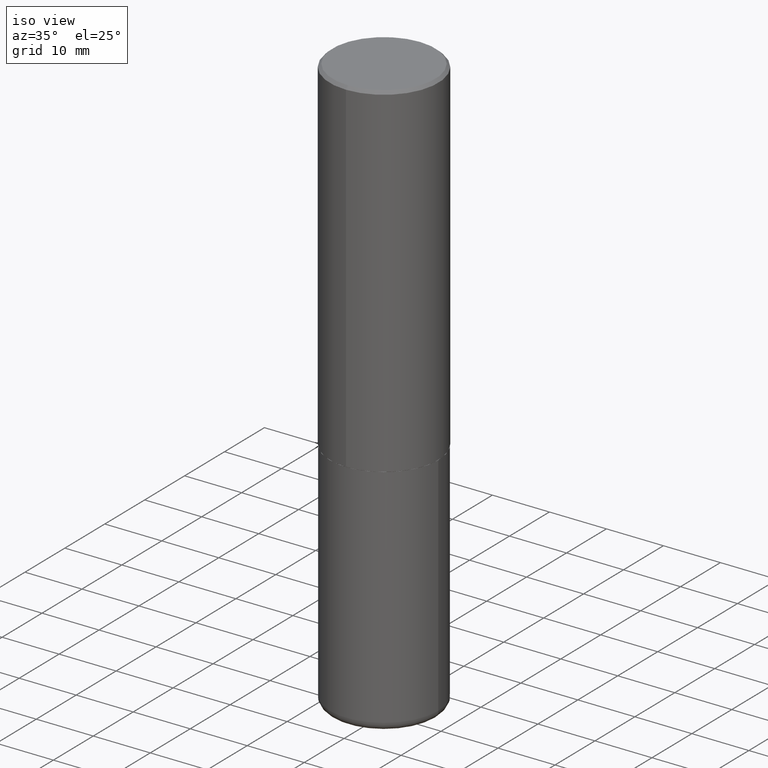
[diagram: clean part render]
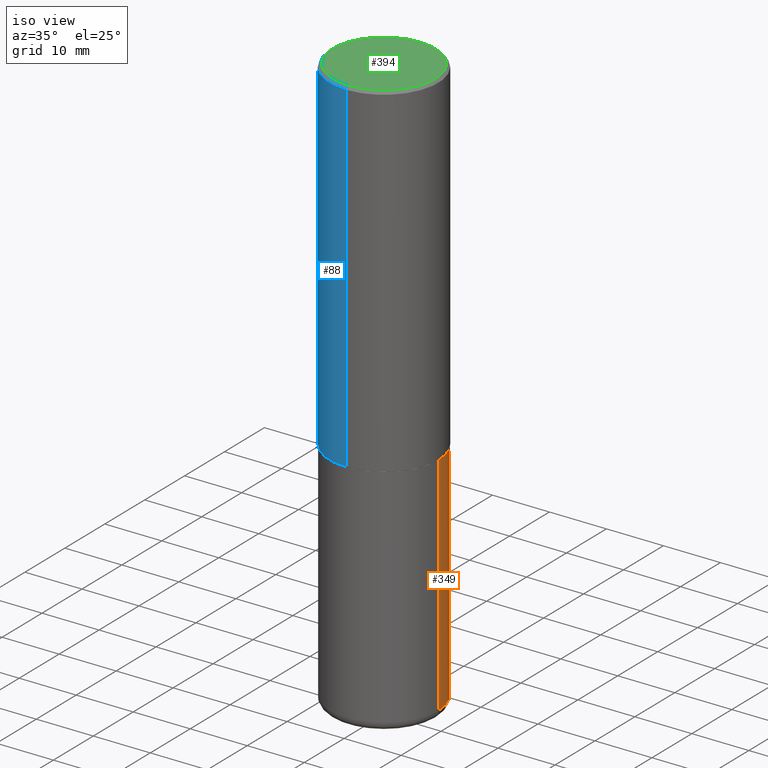
[diagram: same view with three faces highlighted in distinct colors, each labeled with its STEP entity id]
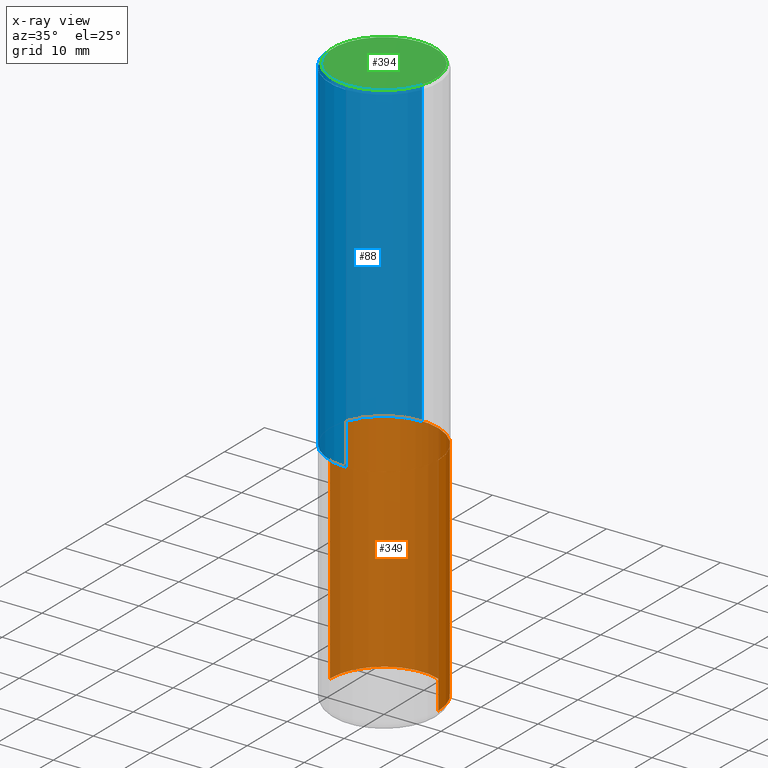
[diagram: x-ray of the same camera — body ghosted, the three highlighted faces saturated]
A machine part, iso view with three faces highlighted in distinct colors.
The next image is the same camera in x-ray (body ghosted, the three faces saturated) — at least one of them is partly hidden behind the body in this view.
Their STEP definitions:

[orange] entity #349 — the highlighted cylindrical surface (partial cylindrical patch) has radius 9.525 mm, axis along (-0, 0, 1).
#3 = DIRECTION ( 'NONE',  ( -2.445468806185136877E-29, 3.491481338843145188E-15, 1.000000000000000000 ) ) ;
#28 = DIRECTION ( 'NONE',  ( -2.445468806185136877E-29, 3.491481338843145188E-15, 1.000000000000000000 ) ) ;
#29 = DIRECTION ( 'NONE',  ( 1.000000000000000000, -6.982962677686266711E-15, 0.000000000000000000 ) ) ;
#47 = CYLINDRICAL_SURFACE ( 'NONE', #147, 0.3750000000000000555 ) ;
#66 = CARTESIAN_POINT ( 'NONE',  ( 0.3750000000000000555, -2.618611004132350016E-15, 1.828566290923476203E-29 ) ) ;
#78 = ORIENTED_EDGE ( 'NONE', *, *, #96, .T. ) ;
#85 = ORIENTED_EDGE ( 'NONE', *, *, #224, .T. ) ;
#89 = CARTESIAN_POINT ( 'NONE',  ( 0.000000000000000000, 0.000000000000000000, 0.000000000000000000 ) ) ;
#91 = AXIS2_PLACEMENT_3D ( 'NONE', #182, #114, #29 ) ;
#96 = EDGE_CURVE ( 'NONE', #231, #318, #212, .T. ) ;
#113 = CARTESIAN_POINT ( 'NONE',  ( -0.3750000000000000555, -8.359817068296857158E-15, -2.375000000000000000 ) ) ;
#114 = DIRECTION ( 'NONE',  ( -2.445468806185136597E-29, 3.491481338843145583E-15, 1.000000000000000000 ) ) ;
#123 = FACE_OUTER_BOUND ( 'NONE', #378, .T. ) ;
#147 = AXIS2_PLACEMENT_3D ( 'NONE', #89, #247, #171 ) ;
#164 = DIRECTION ( 'NONE',  ( 1.000000000000000000, -6.982962677686266711E-15, 0.000000000000000000 ) ) ;
#171 = DIRECTION ( 'NONE',  ( 1.000000000000000000, -6.982962677686265922E-15, 4.876176775795935793E-29 ) ) ;
#182 = CARTESIAN_POINT ( 'NONE',  ( 5.807988414689699417E-29, -8.292268179752470118E-15, -2.375000000000000000 ) ) ;
#190 = CARTESIAN_POINT ( 'NONE',  ( 9.635147096369438236E-29, -1.375643647504199401E-14, -3.939999999999999947 ) ) ;
#193 = EDGE_CURVE ( 'NONE', #231, #385, #353, .T. ) ;
#212 = CIRCLE ( 'NONE', #264, 0.3750000000000000555 ) ;
#224 = EDGE_CURVE ( 'NONE', #318, #270, #316, .T. ) ;
#227 = VECTOR ( 'NONE', #28, 39.37007874015748143 ) ;
#231 = VERTEX_POINT ( 'NONE', #303 ) ;
#247 = DIRECTION ( 'NONE',  ( -2.445468806185136597E-29, 3.491481338843145583E-15, 1.000000000000000000 ) ) ;
#248 = ORIENTED_EDGE ( 'NONE', *, *, #193, .F. ) ;
#264 = AXIS2_PLACEMENT_3D ( 'NONE', #190, #288, #164 ) ;
#270 = VERTEX_POINT ( 'NONE', #113 ) ;
#288 = DIRECTION ( 'NONE',  ( -2.445468806185136597E-29, 3.491481338843145583E-15, 1.000000000000000000 ) ) ;
#294 = EDGE_CURVE ( 'NONE', #385, #270, #306, .T. ) ;
#303 = CARTESIAN_POINT ( 'NONE',  ( 0.3750000000000001110, -1.637504747917434403E-14, -3.939999999999999947 ) ) ;
#306 = CIRCLE ( 'NONE', #91, 0.3750000000000000555 ) ;
#316 = LINE ( 'NONE', #323, #227 ) ;
#318 = VERTEX_POINT ( 'NONE', #348 ) ;
#323 = CARTESIAN_POINT ( 'NONE',  ( -0.3750000000000000555, 2.664535259100376091E-15, -1.844600658845589598E-29 ) ) ;
#328 = VECTOR ( 'NONE', #3, 39.37007874015748143 ) ;
#347 = ORIENTED_EDGE ( 'NONE', *, *, #294, .F. ) ;
#348 = CARTESIAN_POINT ( 'NONE',  ( -0.3750000000000001110, -1.109190121594161832E-14, -3.939999999999999947 ) ) ;
#349 = ADVANCED_FACE ( 'NONE', ( #123 ), #47, .T. ) ;
#353 = LINE ( 'NONE', #66, #328 ) ;
#378 = EDGE_LOOP ( 'NONE', ( #78, #85, #347, #248 ) ) ;
#385 = VERTEX_POINT ( 'NONE', #406 ) ;
#406 = CARTESIAN_POINT ( 'NONE',  ( 0.3750000000000000555, -1.091087918388482013E-14, -2.375000000000000000 ) ) ;

[blue] entity #88 — the highlighted cylindrical surface (partial cylindrical patch) has radius 9.525 mm, axis along (-0, 0, 1).
#9 = CARTESIAN_POINT ( 'NONE',  ( 5.803419400614030161E-29, -8.291817736104219412E-15, -2.373999999999999666 ) ) ;
#27 = CARTESIAN_POINT ( 'NONE',  ( -2.618611004132351200E-15, -0.3750000000000001665, 1.309785868171475725E-15 ) ) ;
#39 = ORIENTED_EDGE ( 'NONE', *, *, #327, .F. ) ;
#54 = ORIENTED_EDGE ( 'NONE', *, *, #298, .F. ) ;
#71 = DIRECTION ( 'NONE',  ( -2.444574305229161733E-29, 3.492762315123933951E-15, 1.000000000000000000 ) ) ;
#88 = ADVANCED_FACE ( 'NONE', ( #97 ), #219, .T. ) ;
#97 = FACE_OUTER_BOUND ( 'NONE', #358, .T. ) ;
#102 = CARTESIAN_POINT ( 'NONE',  ( 2.618611004132350411E-15, 0.3749999999999999445, -0.02000000000000141595 ) ) ;
#103 = DIRECTION ( 'NONE',  ( -6.982962677686266711E-15, -1.000000000000000000, 3.642463991552348591E-15 ) ) ;
#112 = AXIS2_PLACEMENT_3D ( 'NONE', #9, #256, #103 ) ;
#120 = CIRCLE ( 'NONE', #169, 0.3750000000000000555 ) ;
#130 = VERTEX_POINT ( 'NONE', #160 ) ;
#143 = VERTEX_POINT ( 'NONE', #350 ) ;
#146 = VECTOR ( 'NONE', #71, 39.37007874015748143 ) ;
#155 = LINE ( 'NONE', #159, #177 ) ;
#158 = EDGE_CURVE ( 'NONE', #130, #143, #183, .T. ) ;
#159 = CARTESIAN_POINT ( 'NONE',  ( 2.664535259100376486E-15, 0.3750000000000001665, -1.309785868171475725E-15 ) ) ;
#160 = CARTESIAN_POINT ( 'NONE',  ( -2.618611004132293613E-15, -0.3750000000000085487, -2.373999999999998334 ) ) ;
#168 = VERTEX_POINT ( 'NONE', #102 ) ;
#169 = AXIS2_PLACEMENT_3D ( 'NONE', #283, #267, #314 ) ;
#177 = VECTOR ( 'NONE', #377, 39.37007874015748143 ) ;
#183 = LINE ( 'NONE', #27, #146 ) ;
#215 = CARTESIAN_POINT ( 'NONE',  ( 2.664535259100406068E-15, 0.3749999999999920619, -2.374000000000001442 ) ) ;
#219 = CYLINDRICAL_SURFACE ( 'NONE', #271, 0.3750000000000001665 ) ;
#221 = DIRECTION ( 'NONE',  ( -2.444574305229161733E-29, 3.492762315123933951E-15, 1.000000000000000000 ) ) ;
#242 = ORIENTED_EDGE ( 'NONE', *, *, #158, .T. ) ;
#251 = DIRECTION ( 'NONE',  ( -6.982962677686266711E-15, -1.000000000000000000, 3.492762315123933556E-15 ) ) ;
#256 = DIRECTION ( 'NONE',  ( -2.444574305229161733E-29, 3.492762315123933951E-15, 1.000000000000000000 ) ) ;
#267 = DIRECTION ( 'NONE',  ( -2.444574305229161733E-29, 3.492762315123933951E-15, 1.000000000000000000 ) ) ;
#271 = AXIS2_PLACEMENT_3D ( 'NONE', #355, #221, #251 ) ;
#274 = EDGE_CURVE ( 'NONE', #336, #130, #401, .T. ) ;
#283 = CARTESIAN_POINT ( 'NONE',  ( 4.889148610458350090E-31, -6.985524630247905373E-17, -0.02000000000000010797 ) ) ;
#298 = EDGE_CURVE ( 'NONE', #336, #168, #155, .T. ) ;
#314 = DIRECTION ( 'NONE',  ( -6.982962677686265922E-15, -1.000000000000000000, 3.494488891895536035E-15 ) ) ;
#327 = EDGE_CURVE ( 'NONE', #168, #143, #120, .T. ) ;
#336 = VERTEX_POINT ( 'NONE', #215 ) ;
#350 = CARTESIAN_POINT ( 'NONE',  ( -2.572686749164323547E-15, -0.3750000000000001110, -0.01999999999999879652 ) ) ;
#355 = CARTESIAN_POINT ( 'NONE',  ( 0.000000000000000000, 0.000000000000000000, 0.000000000000000000 ) ) ;
#358 = EDGE_LOOP ( 'NONE', ( #54, #390, #242, #39 ) ) ;
#377 = DIRECTION ( 'NONE',  ( -2.444574305229161733E-29, 3.492762315123933951E-15, 1.000000000000000000 ) ) ;
#390 = ORIENTED_EDGE ( 'NONE', *, *, #274, .T. ) ;
#401 = CIRCLE ( 'NONE', #112, 0.3750000000000002776 ) ;

[green] entity #394 — the highlighted planar face has unit normal (0, -0, -1).
#21 = ORIENTED_EDGE ( 'NONE', *, *, #402, .T. ) ;
#41 = AXIS2_PLACEMENT_3D ( 'NONE', #174, #117, #343 ) ;
#57 = ORIENTED_EDGE ( 'NONE', *, *, #317, .T. ) ;
#61 = EDGE_LOOP ( 'NONE', ( #21, #57 ) ) ;
#116 = VERTEX_POINT ( 'NONE', #132 ) ;
#117 = DIRECTION ( 'NONE',  ( -2.444574305229161733E-29, 3.492762315123933951E-15, 1.000000000000000000 ) ) ;
#125 = DIRECTION ( 'NONE',  ( 6.982962677686265922E-15, 1.000000000000000000, -3.492762315123933951E-15 ) ) ;
#132 = CARTESIAN_POINT ( 'NONE',  ( -2.504081769186607821E-15, -0.3549999999999997602, 1.509301655325001413E-15 ) ) ;
#149 = CARTESIAN_POINT ( 'NONE',  ( -6.584975069595768119E-45, 9.408489944411256093E-31, 2.693710334560058270E-16 ) ) ;
#174 = CARTESIAN_POINT ( 'NONE',  ( -6.584975069595768119E-45, 9.408489944411256093E-31, 2.693710334560058270E-16 ) ) ;
#196 = CIRCLE ( 'NONE', #320, 0.3549999999999997602 ) ;
#202 = PLANE ( 'NONE',  #232 ) ;
#232 = AXIS2_PLACEMENT_3D ( 'NONE', #337, #379, #125 ) ;
#237 = DIRECTION ( 'NONE',  ( -6.982962677686266711E-15, -1.000000000000000000, 3.492762315123933556E-15 ) ) ;
#276 = DIRECTION ( 'NONE',  ( -2.444574305229161733E-29, 3.492762315123933951E-15, 1.000000000000000000 ) ) ;
#286 = VERTEX_POINT ( 'NONE', #335 ) ;
#291 = CIRCLE ( 'NONE', #41, 0.3549999999999997602 ) ;
#317 = EDGE_CURVE ( 'NONE', #116, #286, #196, .T. ) ;
#320 = AXIS2_PLACEMENT_3D ( 'NONE', #149, #276, #237 ) ;
#335 = CARTESIAN_POINT ( 'NONE',  ( 2.548781377355486718E-15, 0.3549999999999997602, -9.705595884129897592E-16 ) ) ;
#337 = CARTESIAN_POINT ( 'NONE',  ( 2.478951750578623026E-15, 0.3549999999999997602, -1.105245105140992969E-15 ) ) ;
#343 = DIRECTION ( 'NONE',  ( -6.982962677686266711E-15, -1.000000000000000000, 3.492762315123933556E-15 ) ) ;
#379 = DIRECTION ( 'NONE',  ( 2.444574305229161733E-29, -3.492762315123933951E-15, -1.000000000000000000 ) ) ;
#394 = ADVANCED_FACE ( 'NONE', ( #415 ), #202, .F. ) ;
#402 = EDGE_CURVE ( 'NONE', #286, #116, #291, .T. ) ;
#415 = FACE_OUTER_BOUND ( 'NONE', #61, .T. ) ;